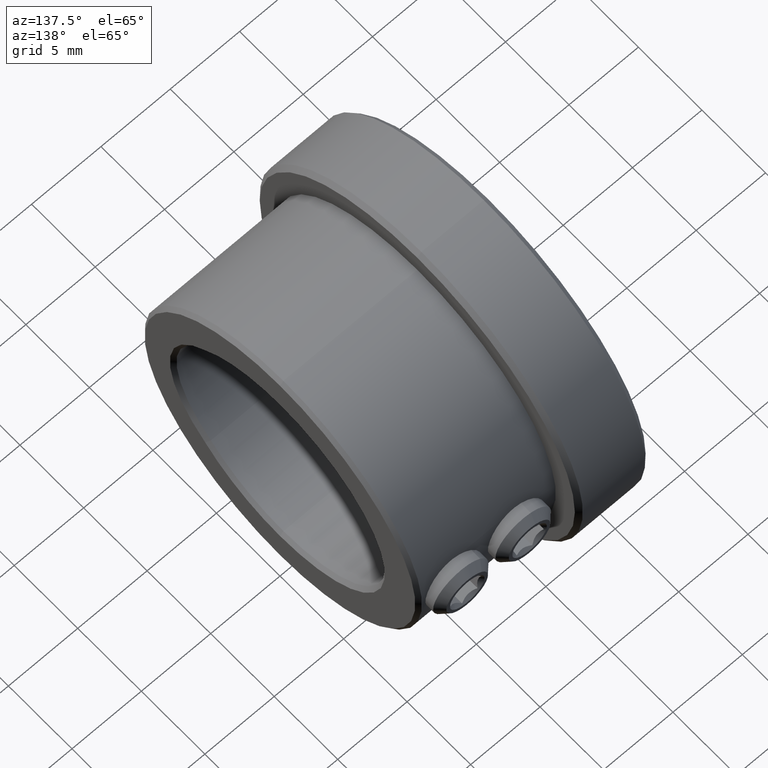
[diagram: clean part render]
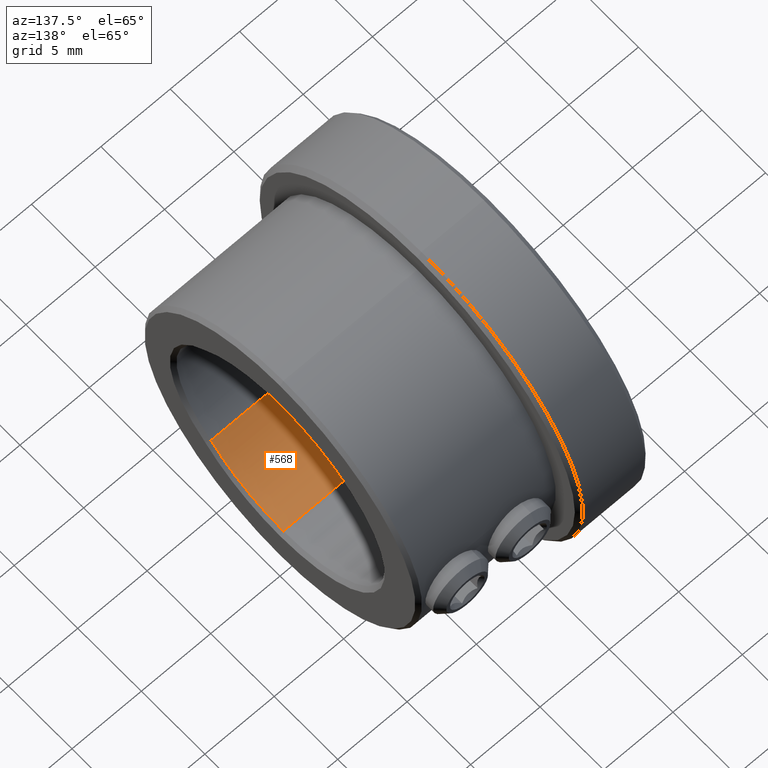
[diagram: same view with one face highlighted and labeled with its STEP entity id]
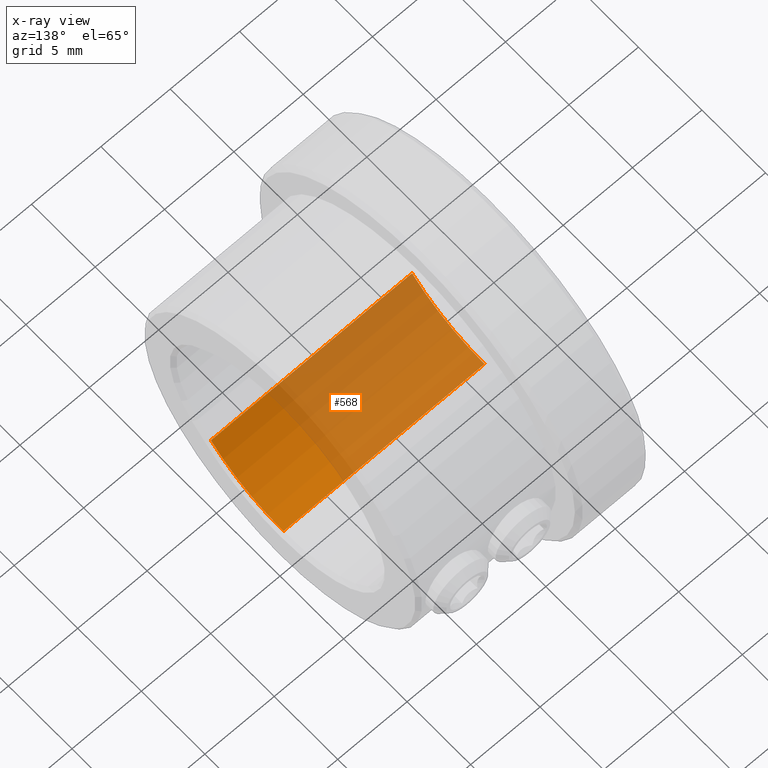
[diagram: x-ray of the same camera — body ghosted, the highlighted face saturated]
A machine part, auxiliary view. The second image highlights one B-rep face of the part: STEP entity #568.
The next image is the same camera in x-ray: the body ghosted, the highlighted face saturated — about 69% of this face is hidden behind the body in this view.
In plain terms, the highlighted cylindrical surface (partial cylindrical patch) has radius 8 mm, axis along (-1, -0, -0).
Its self-contained STEP definition (entity closure, byte-faithful):
#15 = EDGE_CURVE ( 'NONE', #3610, #4642, #2747, .T. ) ;
#20 = CYLINDRICAL_SURFACE ( 'NONE', #2698, 8.000000000000000000 ) ;
#124 = CARTESIAN_POINT ( 'NONE',  ( 0.2499999999999967526, 0.000000000000000000, 0.000000000000000000 ) ) ;
#335 = CARTESIAN_POINT ( 'NONE',  ( 14.74999999999999645, -5.704881889763781189, -5.608415339812595768 ) ) ;
#389 = CARTESIAN_POINT ( 'NONE',  ( 15.00000000000000000, 0.000000000000000000, 0.000000000000000000 ) ) ;
#471 = LINE ( 'NONE', #4213, #607 ) ;
#529 = ORIENTED_EDGE ( 'NONE', *, *, #4056, .T. ) ;
#549 = CARTESIAN_POINT ( 'NONE',  ( 15.00000000000000000, 9.797174393178825657E-16, -8.000000000000000000 ) ) ;
#568 = ADVANCED_FACE ( 'NONE', ( #4773 ), #20, .F. ) ;
#607 = VECTOR ( 'NONE', #857, 1000.000000000000000 ) ;
#742 = CIRCLE ( 'NONE', #2718, 8.000000000000000000 ) ;
#792 = CARTESIAN_POINT ( 'NONE',  ( 0.2499999999999967526, -5.704881889763781189, -5.608415339812595768 ) ) ;
#857 = DIRECTION ( 'NONE',  ( 1.000000000000000000, 0.000000000000000000, 0.000000000000000000 ) ) ;
#871 = ORIENTED_EDGE ( 'NONE', *, *, #15, .T. ) ;
#983 = ORIENTED_EDGE ( 'NONE', *, *, #3991, .T. ) ;
#1176 = CARTESIAN_POINT ( 'NONE',  ( 14.74999999999999645, 9.797174393178825657E-16, -8.000000000000000000 ) ) ;
#1307 = DIRECTION ( 'NONE',  ( 0.000000000000000000, 0.000000000000000000, -1.000000000000000000 ) ) ;
#1380 = ORIENTED_EDGE ( 'NONE', *, *, #2280, .T. ) ;
#1424 = VERTEX_POINT ( 'NONE', #792 ) ;
#1487 = DIRECTION ( 'NONE',  ( 0.000000000000000000, 0.000000000000000000, 1.000000000000000000 ) ) ;
#1753 = EDGE_LOOP ( 'NONE', ( #1380, #871, #529, #983 ) ) ;
#2280 = EDGE_CURVE ( 'NONE', #3345, #3610, #4492, .T. ) ;
#2394 = DIRECTION ( 'NONE',  ( 0.000000000000000000, 0.000000000000000000, -1.000000000000000000 ) ) ;
#2469 = AXIS2_PLACEMENT_3D ( 'NONE', #3983, #4727, #1307 ) ;
#2512 = CARTESIAN_POINT ( 'NONE',  ( 0.2499999999999967526, 9.797174393178825657E-16, -8.000000000000000000 ) ) ;
#2637 = DIRECTION ( 'NONE',  ( -1.000000000000000000, -0.000000000000000000, -0.000000000000000000 ) ) ;
#2698 = AXIS2_PLACEMENT_3D ( 'NONE', #389, #2637, #1487 ) ;
#2718 = AXIS2_PLACEMENT_3D ( 'NONE', #124, #3083, #2394 ) ;
#2747 = LINE ( 'NONE', #549, #3792 ) ;
#3083 = DIRECTION ( 'NONE',  ( -1.000000000000000000, 0.000000000000000000, 0.000000000000000000 ) ) ;
#3345 = VERTEX_POINT ( 'NONE', #335 ) ;
#3478 = DIRECTION ( 'NONE',  ( -1.000000000000000000, -0.000000000000000000, -0.000000000000000000 ) ) ;
#3610 = VERTEX_POINT ( 'NONE', #1176 ) ;
#3792 = VECTOR ( 'NONE', #3478, 1000.000000000000000 ) ;
#3983 = CARTESIAN_POINT ( 'NONE',  ( 14.74999999999999645, 0.000000000000000000, 0.000000000000000000 ) ) ;
#3991 = EDGE_CURVE ( 'NONE', #1424, #3345, #471, .T. ) ;
#4056 = EDGE_CURVE ( 'NONE', #4642, #1424, #742, .T. ) ;
#4213 = CARTESIAN_POINT ( 'NONE',  ( 7.500000000000000000, -5.704881889763781189, -5.608415339812595768 ) ) ;
#4492 = CIRCLE ( 'NONE', #2469, 8.000000000000000000 ) ;
#4642 = VERTEX_POINT ( 'NONE', #2512 ) ;
#4727 = DIRECTION ( 'NONE',  ( 1.000000000000000000, -0.000000000000000000, -0.000000000000000000 ) ) ;
#4773 = FACE_OUTER_BOUND ( 'NONE', #1753, .T. ) ;